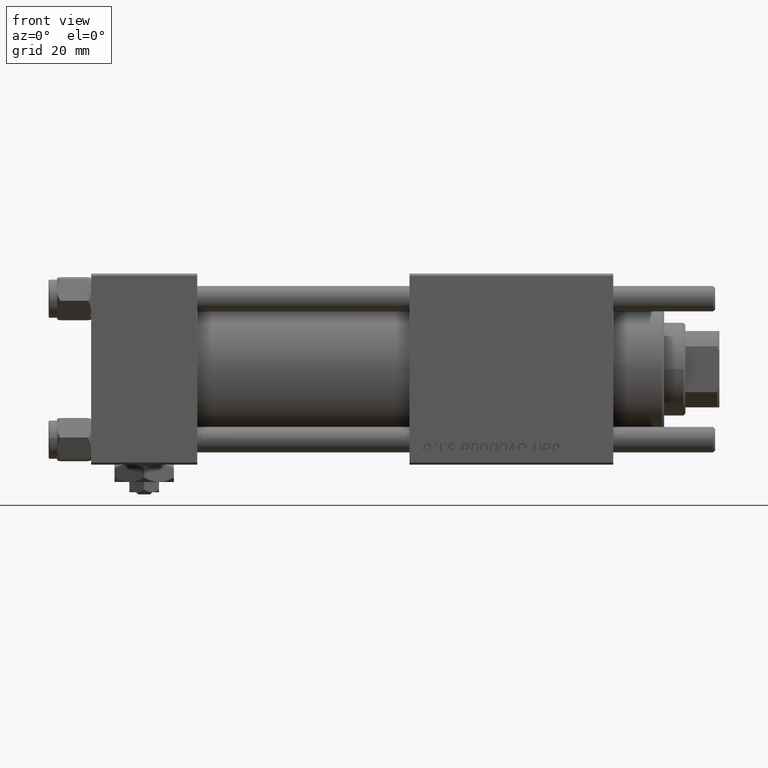
[diagram: clean part render]
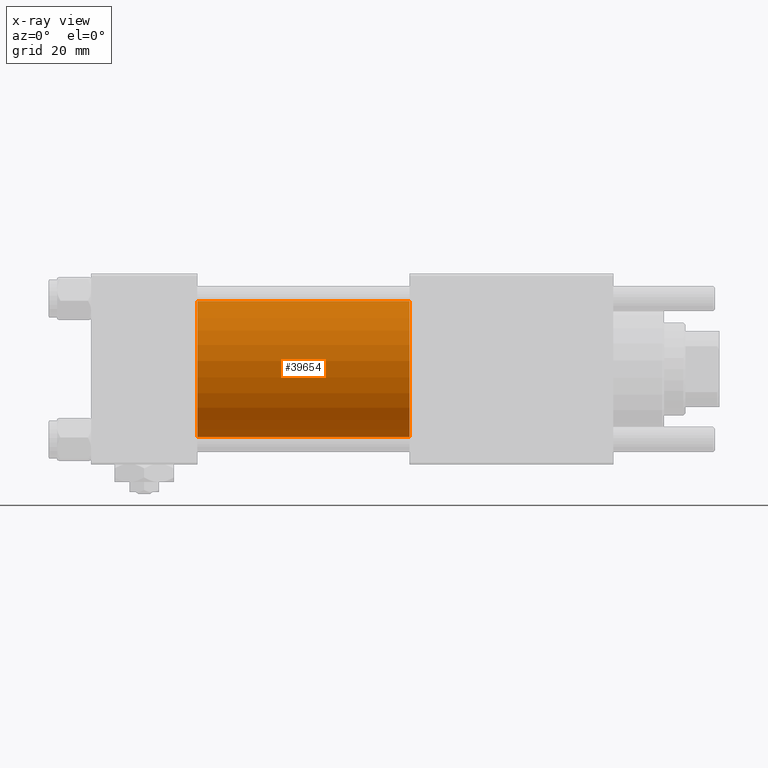
[diagram: x-ray — body ghosted, one internal face saturated and labeled with its STEP entity id]
A machine part, front view, then the same camera in x-ray: the body is ghosted and one INTERNAL B-rep face — a face not visible from any outside direction — is saturated and labeled: STEP entity #39654.
In plain terms, the highlighted cylindrical surface (partial cylindrical patch) has radius 16 mm, axis along (-1, -0, -0).
Its self-contained STEP definition (entity closure, byte-faithful):
#2615 = LINE ( 'NONE', #20690, #52567 ) ;
#5957 = DIRECTION ( 'NONE',  ( 0.000000000000000000, 0.000000000000000000, -1.000000000000000000 ) ) ;
#15828 = VERTEX_POINT ( 'NONE', #18110 ) ;
#17538 = DIRECTION ( 'NONE',  ( 0.000000000000000000, 0.000000000000000000, -1.000000000000000000 ) ) ;
#17902 = FACE_OUTER_BOUND ( 'NONE', #39323, .T. ) ;
#18110 = CARTESIAN_POINT ( 'NONE',  ( 25.00000000000000000, -2.602085213965210642E-15, 16.00000000000000000 ) ) ;
#19859 = CARTESIAN_POINT ( 'NONE',  ( 75.00000000000001421, -2.602085213965210642E-15, 16.00000000000000000 ) ) ;
#20690 = CARTESIAN_POINT ( 'NONE',  ( 75.00000000000001421, -6.426503353294456087E-16, -16.00000000000000000 ) ) ;
#23229 = CYLINDRICAL_SURFACE ( 'NONE', #32072, 16.00000000000000000 ) ;
#24058 = CARTESIAN_POINT ( 'NONE',  ( 75.00000000000001421, -6.426503353294456087E-16, -16.00000000000000000 ) ) ;
#26483 = EDGE_CURVE ( 'NONE', #30095, #51070, #2615, .T. ) ;
#27372 = CARTESIAN_POINT ( 'NONE',  ( 75.00000000000001421, -2.602085213965210642E-15, 0.000000000000000000 ) ) ;
#27567 = AXIS2_PLACEMENT_3D ( 'NONE', #40010, #48308, #17538 ) ;
#30095 = VERTEX_POINT ( 'NONE', #24058 ) ;
#32072 = AXIS2_PLACEMENT_3D ( 'NONE', #27372, #58450, #40668 ) ;
#34162 = VECTOR ( 'NONE', #55399, 1000.000000000000000 ) ;
#37892 = LINE ( 'NONE', #42630, #34162 ) ;
#38131 = DIRECTION ( 'NONE',  ( -1.000000000000000000, -0.000000000000000000, -0.000000000000000000 ) ) ;
#39323 = EDGE_LOOP ( 'NONE', ( #53141, #51648, #54750, #58511 ) ) ;
#39654 = ADVANCED_FACE ( 'NONE', ( #17902 ), #23229, .F. ) ;
#40010 = CARTESIAN_POINT ( 'NONE',  ( 75.00000000000001421, -2.602085213965210642E-15, 0.000000000000000000 ) ) ;
#40042 = EDGE_CURVE ( 'NONE', #15828, #51070, #46283, .T. ) ;
#40044 = VERTEX_POINT ( 'NONE', #19859 ) ;
#40668 = DIRECTION ( 'NONE',  ( 0.000000000000000000, 0.000000000000000000, 1.000000000000000000 ) ) ;
#41471 = DIRECTION ( 'NONE',  ( 1.000000000000000000, 0.000000000000000000, 0.000000000000000000 ) ) ;
#41741 = CIRCLE ( 'NONE', #27567, 16.00000000000000000 ) ;
#42630 = CARTESIAN_POINT ( 'NONE',  ( 75.00000000000001421, -2.602085213965210642E-15, 16.00000000000000000 ) ) ;
#46283 = CIRCLE ( 'NONE', #49095, 16.00000000000000000 ) ;
#47369 = EDGE_CURVE ( 'NONE', #40044, #30095, #41741, .T. ) ;
#47527 = EDGE_CURVE ( 'NONE', #40044, #15828, #37892, .T. ) ;
#48308 = DIRECTION ( 'NONE',  ( 1.000000000000000000, 0.000000000000000000, 0.000000000000000000 ) ) ;
#49095 = AXIS2_PLACEMENT_3D ( 'NONE', #55677, #41471, #5957 ) ;
#49490 = CARTESIAN_POINT ( 'NONE',  ( 25.00000000000000000, -6.426503353294456087E-16, -16.00000000000000000 ) ) ;
#51070 = VERTEX_POINT ( 'NONE', #49490 ) ;
#51648 = ORIENTED_EDGE ( 'NONE', *, *, #26483, .T. ) ;
#52567 = VECTOR ( 'NONE', #38131, 1000.000000000000000 ) ;
#53141 = ORIENTED_EDGE ( 'NONE', *, *, #47369, .T. ) ;
#54750 = ORIENTED_EDGE ( 'NONE', *, *, #40042, .F. ) ;
#55399 = DIRECTION ( 'NONE',  ( -1.000000000000000000, -0.000000000000000000, -0.000000000000000000 ) ) ;
#55677 = CARTESIAN_POINT ( 'NONE',  ( 25.00000000000000000, -2.602085213965210642E-15, 0.000000000000000000 ) ) ;
#58450 = DIRECTION ( 'NONE',  ( -1.000000000000000000, -0.000000000000000000, -0.000000000000000000 ) ) ;
#58511 = ORIENTED_EDGE ( 'NONE', *, *, #47527, .F. ) ;